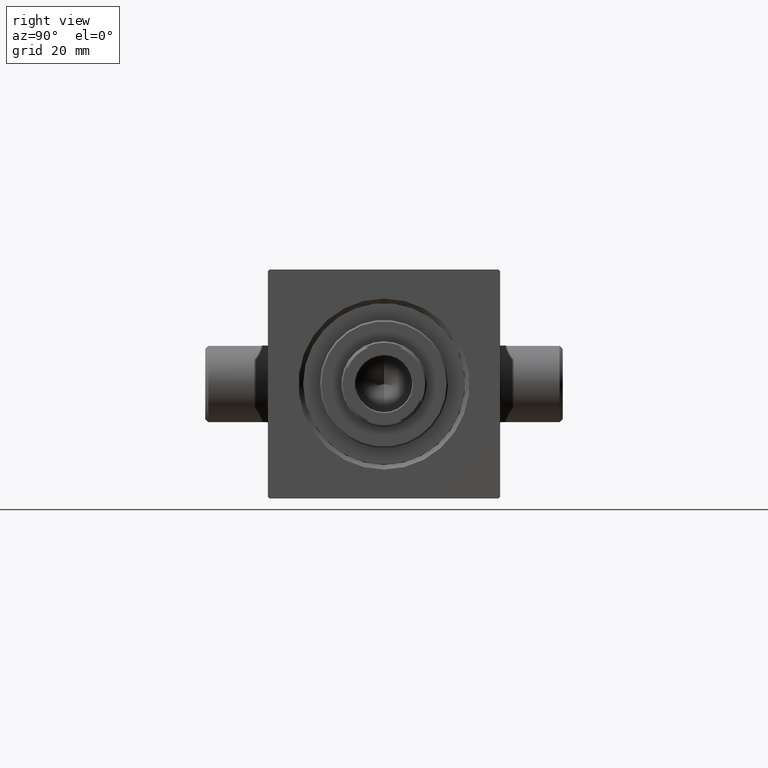
[diagram: clean part render]
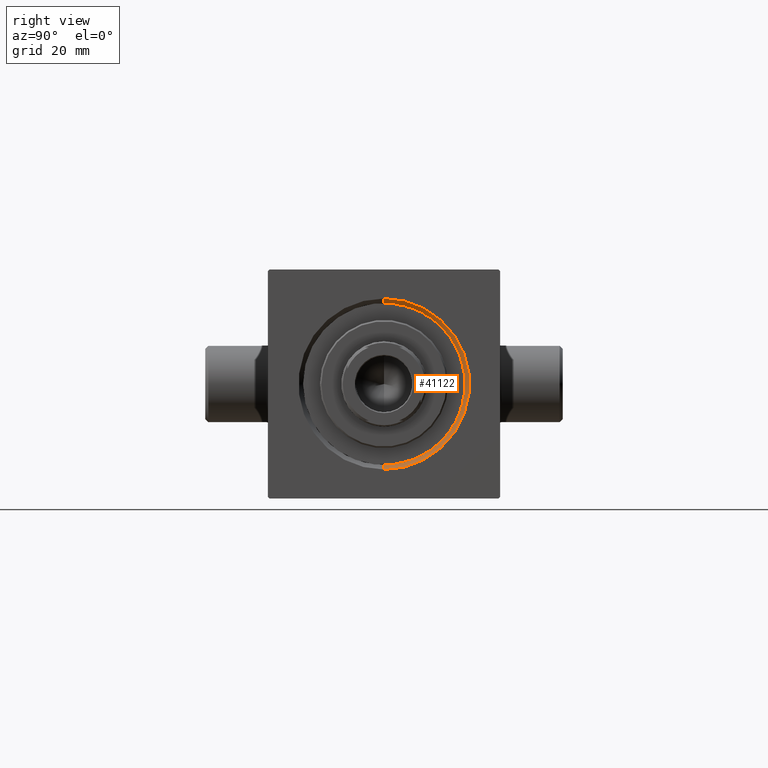
[diagram: same view with one face highlighted and labeled with its STEP entity id]
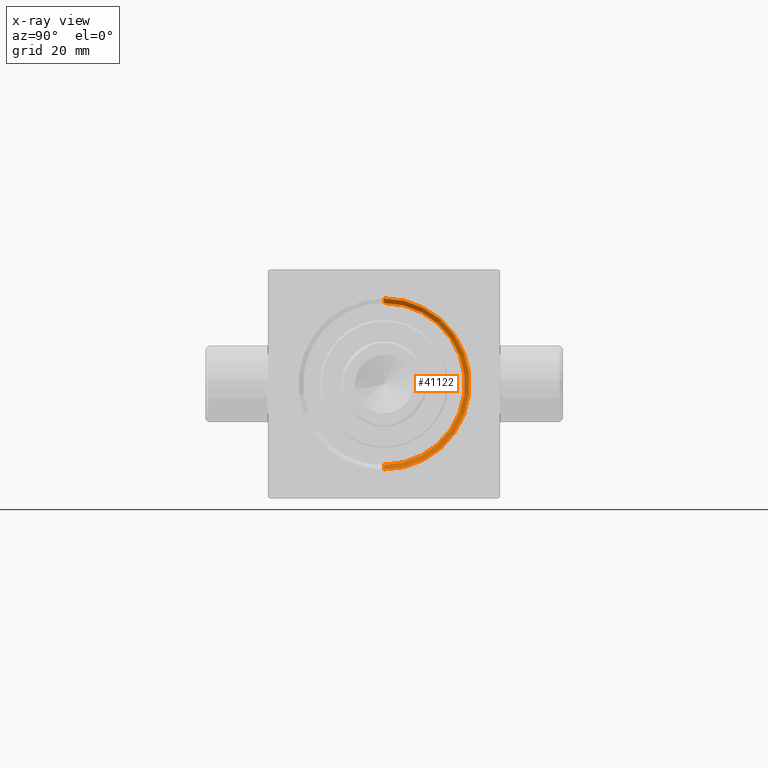
[diagram: x-ray of the same camera — body ghosted, the highlighted face saturated]
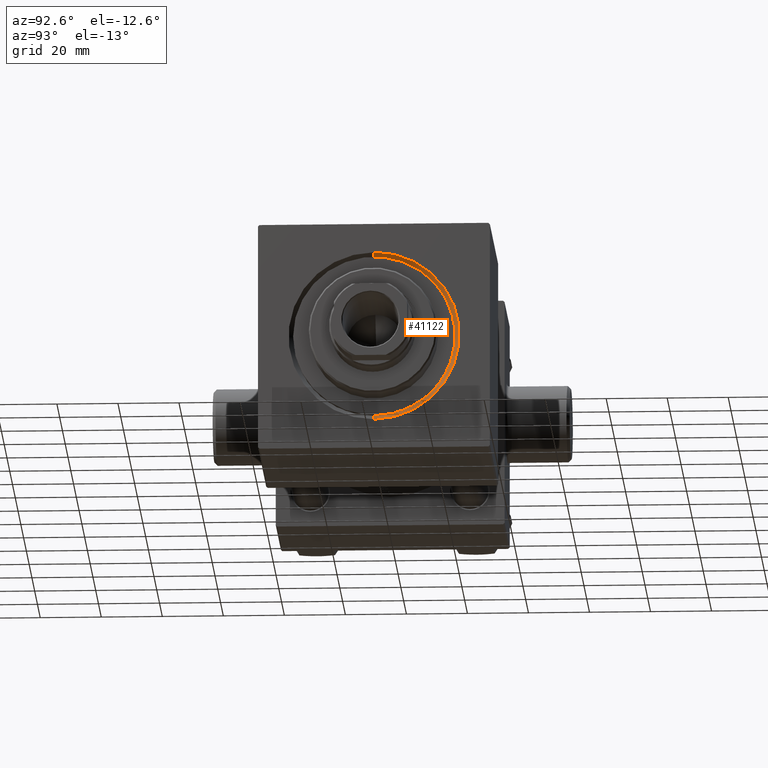
[diagram: same view with one face highlighted and labeled with its STEP entity id]
A machine part, right view. The second image highlights one B-rep face of the part: STEP entity #41122.
The next image is the same camera in x-ray: the body ghosted, the highlighted face saturated — about 0% of this face is hidden behind the body in this view.
A second angle (auxiliary view) of the same face is appended — the face is thin or edge-on in the first view.
In plain terms, the highlighted conical surface has half-angle 45 deg.
Its self-contained STEP definition (entity closure, byte-faithful):
#784 = LINE ( 'NONE', #21617, #31881 ) ;
#1464 = CARTESIAN_POINT ( 'NONE',  ( 152.5000000000000568, 0.000000000000000000, 0.000000000000000000 ) ) ;
#2995 = CARTESIAN_POINT ( 'NONE',  ( 154.0000000000000000, 3.429011037612582176E-15, 27.99999999999994316 ) ) ;
#3010 = AXIS2_PLACEMENT_3D ( 'NONE', #20390, #26951, #41232 ) ;
#3707 = CARTESIAN_POINT ( 'NONE',  ( 152.5000000000000568, 0.000000000000000000, -26.50000000000000355 ) ) ;
#3907 = AXIS2_PLACEMENT_3D ( 'NONE', #1464, #33774, #26285 ) ;
#7465 = ORIENTED_EDGE ( 'NONE', *, *, #35214, .F. ) ;
#8444 = CONICAL_SURFACE ( 'NONE', #3907, 26.50000000000000355, 0.7853981633974459475 ) ;
#9722 = VERTEX_POINT ( 'NONE', #2995 ) ;
#11553 = EDGE_CURVE ( 'NONE', #44266, #9722, #28666, .T. ) ;
#17249 = VERTEX_POINT ( 'NONE', #3707 ) ;
#19041 = EDGE_CURVE ( 'NONE', #17249, #24440, #784, .T. ) ;
#19458 = CIRCLE ( 'NONE', #3010, 27.99999999999994316 ) ;
#20390 = CARTESIAN_POINT ( 'NONE',  ( 154.0000000000000000, 0.000000000000000000, 0.000000000000000000 ) ) ;
#21617 = CARTESIAN_POINT ( 'NONE',  ( 152.5000000000000568, 0.000000000000000000, -26.50000000000000355 ) ) ;
#23602 = DIRECTION ( 'NONE',  ( 1.000000000000000000, 0.000000000000000000, 0.000000000000000000 ) ) ;
#24110 = ORIENTED_EDGE ( 'NONE', *, *, #11553, .F. ) ;
#24440 = VERTEX_POINT ( 'NONE', #34442 ) ;
#25354 = DIRECTION ( 'NONE',  ( 0.7071067811865491270, 0.000000000000000000, -0.7071067811865459074 ) ) ;
#26285 = DIRECTION ( 'NONE',  ( 0.000000000000000000, 0.000000000000000000, -1.000000000000000000 ) ) ;
#26517 = FACE_OUTER_BOUND ( 'NONE', #30068, .T. ) ;
#26951 = DIRECTION ( 'NONE',  ( -1.000000000000000000, -0.000000000000000000, 0.000000000000000000 ) ) ;
#28666 = LINE ( 'NONE', #35470, #29449 ) ;
#29449 = VECTOR ( 'NONE', #35228, 1000.000000000000114 ) ;
#30068 = EDGE_LOOP ( 'NONE', ( #24110, #35425, #33219, #7465 ) ) ;
#30844 = DIRECTION ( 'NONE',  ( 0.000000000000000000, 0.000000000000000000, 1.000000000000000000 ) ) ;
#31643 = AXIS2_PLACEMENT_3D ( 'NONE', #34140, #23602, #30844 ) ;
#31881 = VECTOR ( 'NONE', #25354, 1000.000000000000114 ) ;
#33219 = ORIENTED_EDGE ( 'NONE', *, *, #19041, .T. ) ;
#33774 = DIRECTION ( 'NONE',  ( 1.000000000000000000, 0.000000000000000000, 0.000000000000000000 ) ) ;
#34140 = CARTESIAN_POINT ( 'NONE',  ( 152.5000000000000568, 0.000000000000000000, 0.000000000000000000 ) ) ;
#34442 = CARTESIAN_POINT ( 'NONE',  ( 154.0000000000000000, 0.000000000000000000, -27.99999999999994316 ) ) ;
#34950 = CARTESIAN_POINT ( 'NONE',  ( 152.5000000000000568, 3.245314017740486554E-15, 26.50000000000000355 ) ) ;
#35214 = EDGE_CURVE ( 'NONE', #9722, #24440, #19458, .T. ) ;
#35228 = DIRECTION ( 'NONE',  ( 0.7071067811865491270, 8.659560562354911904E-17, 0.7071067811865459074 ) ) ;
#35425 = ORIENTED_EDGE ( 'NONE', *, *, #43666, .F. ) ;
#35470 = CARTESIAN_POINT ( 'NONE',  ( 152.5000000000000568, 3.245314017740486554E-15, 26.50000000000000355 ) ) ;
#40639 = CIRCLE ( 'NONE', #31643, 26.50000000000000355 ) ;
#41122 = ADVANCED_FACE ( 'NONE', ( #26517 ), #8444, .F. ) ;
#41232 = DIRECTION ( 'NONE',  ( 0.000000000000000000, 0.000000000000000000, 1.000000000000000000 ) ) ;
#43666 = EDGE_CURVE ( 'NONE', #17249, #44266, #40639, .T. ) ;
#44266 = VERTEX_POINT ( 'NONE', #34950 ) ;